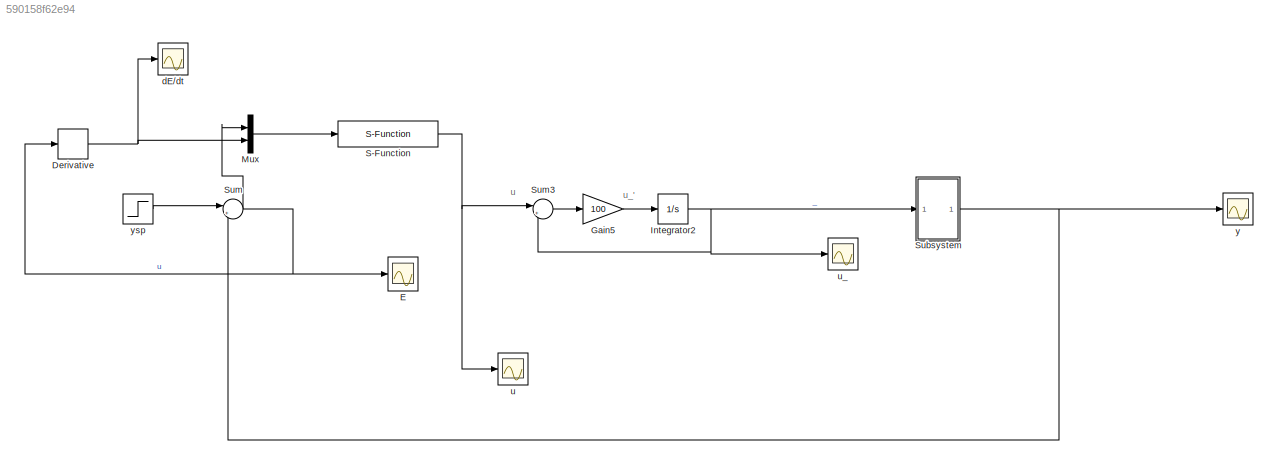
MODEL slx_590158f62e94
KIND model
CONFIG AbsTol = auto
CONFIG EnableMultiTasking = off
CONFIG FixedStep = auto
CONFIG MaxStep = auto
CONFIG MinStep = auto
CONFIG RelTol = 1e-3
CONFIG SampleTimeConstraint = Unconstrained
CONFIG Solver = VariableStepAuto
CONFIG SolverName = VariableStepAuto
CONFIG StartTime = 0.0
CONFIG StopTime = 20
BLOCK [Derivative] Derivative
BLOCK [Scope] E
  Floating = off
  NumInputPorts = 1
  Ports = [1]
  ScopeSpecificationString = Simulink.scopes.TimeScopeBlockCfg('CurrentConfiguration', extmgr.ConfigurationSet(extmgr.Configuration('Core','General UI',true),extmgr.Configuration('Core','Source UI',true),extmgr.Configuration('Sources','WiredSimulink',true,'DataLoggingVariableName','e','DataLogging',true,'DataLoggingSaveFormat','Array'),extmgr.Configuration('Visuals','Time Domain',true,'SerializedDisplays',{struct('MinYLimReal...<+1435ch>
BLOCK [Gain] Gain5
  Gain = 100
  OutDataTypeStr = Inherit: Inherit via internal rule
  ParamDataTypeStr = Inherit: Inherit via internal rule
  SaturateOnIntegerOverflow = off
BLOCK [Integrator] Integrator2
  Ports = [1, 1]
BLOCK [Mux] Mux
  DisplayOption = bar
  Inputs = 2
  Ports = [2, 1]
BLOCK [S-Function] S-Function
  EnableBusSupport = off
  FunctionName = fuzzy_control_pd
  Ports = [1, 1]
  SFcnIsStateOwnerBlock = off
  SFunctionDeploymentMode = off
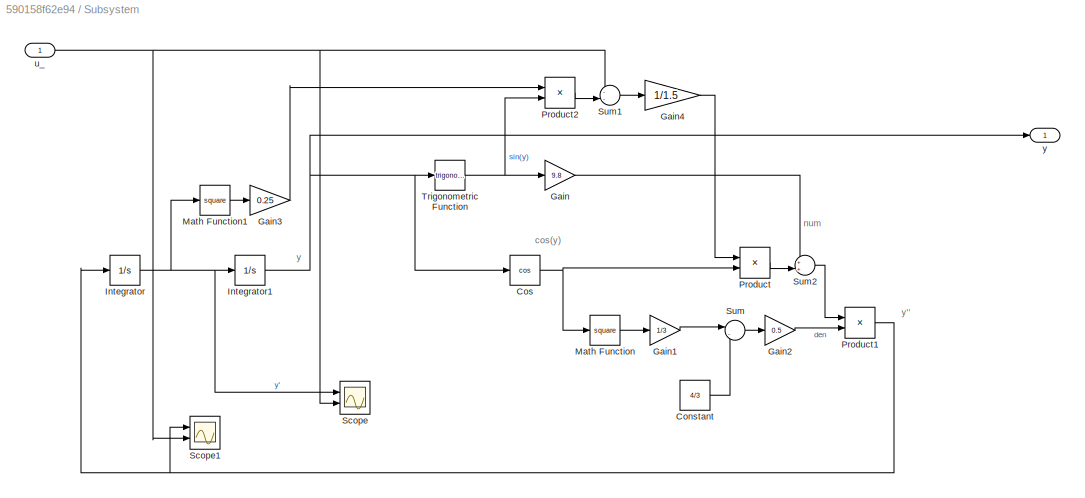
BLOCK [SubSystem] Subsystem
  Ports = [1, 1]
  RequestExecContextInheritance = off
BLOCK [Constant] Subsystem/Constant
  Value = 4/3
BLOCK [Trigonometry] Subsystem/Cos
  Operator = cos
  Ports = [1, 1]
BLOCK [Gain] Subsystem/Gain
  Gain = 9.8
  OutDataTypeStr = Inherit: Inherit via internal rule
  ParamDataTypeStr = Inherit: Inherit via internal rule
  SaturateOnIntegerOverflow = off
BLOCK [Gain] Subsystem/Gain1
  Gain = 1/3
  OutDataTypeStr = Inherit: Inherit via internal rule
  ParamDataTypeStr = Inherit: Inherit via internal rule
  SaturateOnIntegerOverflow = off
BLOCK [Gain] Subsystem/Gain2
  Gain = 0.5
  OutDataTypeStr = Inherit: Inherit via internal rule
  ParamDataTypeStr = Inherit: Inherit via internal rule
  SaturateOnIntegerOverflow = off
BLOCK [Gain] Subsystem/Gain3
  Gain = 0.25
  OutDataTypeStr = Inherit: Inherit via internal rule
  ParamDataTypeStr = Inherit: Inherit via internal rule
  SaturateOnIntegerOverflow = off
BLOCK [Gain] Subsystem/Gain4
  Gain = 1/1.5
  OutDataTypeStr = Inherit: Inherit via internal rule
  ParamDataTypeStr = Inherit: Inherit via internal rule
  SaturateOnIntegerOverflow = off
BLOCK [Integrator] Subsystem/Integrator
  Ports = [1, 1]
BLOCK [Integrator] Subsystem/Integrator1
  InitialCondition = 0.1
  Ports = [1, 1]
BLOCK [Math] Subsystem/Math Function
  Operator = square
  Ports = [1, 1]
  SignedPower = off
BLOCK [Math] Subsystem/Math Function1
  Operator = square
  Ports = [1, 1]
  SignedPower = off
BLOCK [Product] Subsystem/Product
  InputSameDT = off
  OutDataTypeStr = Inherit: Inherit via internal rule
  Ports = [2, 1]
  RndMeth = Floor
  SaturateOnIntegerOverflow = off
BLOCK [Product] Subsystem/Product1
  InputSameDT = off
  Inputs = */
  OutDataTypeStr = Inherit: Inherit via internal rule
  Ports = [2, 1]
  RndMeth = Floor
  SaturateOnIntegerOverflow = off
BLOCK [Product] Subsystem/Product2
  InputSameDT = off
  OutDataTypeStr = Inherit: Inherit via internal rule
  Ports = [2, 1]
  RndMeth = Floor
  SaturateOnIntegerOverflow = off
BLOCK [Scope] Subsystem/Scope
  Floating = off
  NumInputPorts = 2
  Ports = [2]
  ScopeSpecificationString = Simulink.scopes.TimeScopeBlockCfg('CurrentConfiguration', extmgr.ConfigurationSet(extmgr.Configuration('Core','General UI',true),extmgr.Configuration('Core','Source UI',true),extmgr.Configuration('Sources','WiredSimulink',true,'DataLoggingVariableName','ScopeData4'),extmgr.Configuration('Visuals','Time Domain',true,'SerializedDisplays',{struct('MinYLimReal','-1.28249','MaxYLimReal','4.87148','YLab...<+1396ch>
BLOCK [Scope] Subsystem/Scope1
  Floating = off
  NumInputPorts = 2
  Ports = [2]
  ScopeSpecificationString = Simulink.scopes.TimeScopeBlockCfg('CurrentConfiguration', extmgr.ConfigurationSet(extmgr.Configuration('Core','General UI',true),extmgr.Configuration('Core','Source UI',true),extmgr.Configuration('Sources','WiredSimulink',true,'DataLoggingVariableName','ScopeData5'),extmgr.Configuration('Visuals','Time Domain',true,'SerializedDisplays',{struct('MinYLimReal','-4.66964','MaxYLimReal','5.24783','YLab...<+1401ch>
BLOCK [Sum] Subsystem/Sum
  IconShape = round
  InputSameDT = off
  Inputs = |-+
  OutDataTypeStr = Inherit: Inherit via internal rule
  Ports = [2, 1]
  SaturateOnIntegerOverflow = off
BLOCK [Sum] Subsystem/Sum1
  IconShape = round
  InputSameDT = off
  Inputs = --|
  OutDataTypeStr = Inherit: Inherit via internal rule
  Ports = [2, 1]
  SaturateOnIntegerOverflow = off
BLOCK [Sum] Subsystem/Sum2
  IconShape = round
  InputSameDT = off
  Inputs = ++|
  OutDataTypeStr = Inherit: Inherit via internal rule
  Ports = [2, 1]
  SaturateOnIntegerOverflow = off
BLOCK [Trigonometry] Subsystem/Trigonometric Function
  Ports = [1, 1]
BLOCK [Inport] Subsystem/u_
  IconDisplay = Port number
BLOCK [Outport] Subsystem/y
  IconDisplay = Port number
BLOCK [Sum] Sum
  IconShape = round
  InputSameDT = off
  Inputs = |+-
  OutDataTypeStr = Inherit: Inherit via internal rule
  Ports = [2, 1]
  SaturateOnIntegerOverflow = off
BLOCK [Sum] Sum3
  IconShape = round
  InputSameDT = off
  Inputs = |+-
  OutDataTypeStr = Inherit: Inherit via internal rule
  Ports = [2, 1]
  SaturateOnIntegerOverflow = off
BLOCK [Scope] dE//dt
  Floating = off
  NumInputPorts = 1
  Ports = [1]
  ScopeSpecificationString = Simulink.scopes.TimeScopeBlockCfg('CurrentConfiguration', extmgr.ConfigurationSet(extmgr.Configuration('Core','General UI',true),extmgr.Configuration('Core','Source UI',true),extmgr.Configuration('Sources','WiredSimulink',true,'DataLoggingVariableName','de','DataLogging',true,'DataLoggingSaveFormat','Array'),extmgr.Configuration('Visuals','Time Domain',true,'SerializedDisplays',{struct('MinYLimRea...<+1412ch>
BLOCK [Scope] u
  Floating = off
  NumInputPorts = 1
  Ports = [1]
  ScopeSpecificationString = Simulink.scopes.TimeScopeBlockCfg('CurrentConfiguration', extmgr.ConfigurationSet(extmgr.Configuration('Core','General UI',true),extmgr.Configuration('Core','Source UI',true),extmgr.Configuration('Sources','WiredSimulink',true,'DataLoggingVariableName','u_no_p','DataLogging',true,'DataLoggingSaveFormat','Array'),extmgr.Configuration('Visuals','Time Domain',true,'SerializedDisplays',{struct('MinYLi...<+1446ch>
BLOCK [Scope] u_
  Floating = off
  NumInputPorts = 1
  Ports = [1]
  ScopeSpecificationString = Simulink.scopes.TimeScopeBlockCfg('CurrentConfiguration', extmgr.ConfigurationSet(extmgr.Configuration('Core','General UI',true),extmgr.Configuration('Core','Source UI',true),extmgr.Configuration('Sources','WiredSimulink',true,'DataLoggingVariableName','ScopeData1','DataLoggingSaveFormat','Array'),extmgr.Configuration('Visuals','Time Domain',true,'SerializedDisplays',{struct('MinYLimReal','-1.2824...<+1392ch>
BLOCK [Scope] y
  Floating = off
  NumInputPorts = 1
  Ports = [1]
  ScopeSpecificationString = Simulink.scopes.TimeScopeBlockCfg('CurrentConfiguration', extmgr.ConfigurationSet(extmgr.Configuration('Core','General UI',true),extmgr.Configuration('Core','Source UI',true),extmgr.Configuration('Sources','WiredSimulink',true,'DataLoggingVariableName','y_no_p','DataLogging',true,'DataLoggingSaveFormat','Array'),extmgr.Configuration('Visuals','Time Domain',true,'SerializedDisplays',{struct('MinYLi...<+1415ch>
BLOCK [Step] ysp
  After = 0
  SampleTime = 0
  Time = 0
ANNOTATION (root): u
ANNOTATION (root): u_'
ANNOTATION Subsystem: cos(y)
ANNOTATION Subsystem: num
ANNOTATION Subsystem: y
ANNOTATION Subsystem: y''
NET Derivative:1 -> Mux:2, dE//dt:1
LINE Gain5:1 -> Integrator2:1
NET Integrator2:1 -> Subsystem:1, Sum3:2, u_:1
LINE Mux:1 -> S-Function:1
NET S-Function:1 -> Sum3:1, u:1
LINE Subsystem/Constant:1 -> Subsystem/Sum:2
NET Subsystem/Cos:1 -> Subsystem/Math Function:1, Subsystem/Product:2
LINE Subsystem/Gain1:1 -> Subsystem/Sum:1
LINE Subsystem/Gain2:1 -> Subsystem/Product1:2
LINE Subsystem/Gain3:1 -> Subsystem/Product2:1
LINE Subsystem/Gain4:1 -> Subsystem/Product:1
LINE Subsystem/Gain:1 -> Subsystem/Sum2:1
NET Subsystem/Integrator1:1 -> Subsystem/Cos:1, Subsystem/Trigonometric Function:1, Subsystem/y:1
NET Subsystem/Integrator:1 -> Subsystem/Integrator1:1, Subsystem/Math Function1:1, Subsystem/Scope:1
LINE Subsystem/Math Function1:1 -> Subsystem/Gain3:1
LINE Subsystem/Math Function:1 -> Subsystem/Gain1:1
NET Subsystem/Product1:1 -> Subsystem/Integrator:1, Subsystem/Scope1:1
LINE Subsystem/Product2:1 -> Subsystem/Sum1:2
LINE Subsystem/Product:1 -> Subsystem/Sum2:2
LINE Subsystem/Sum1:1 -> Subsystem/Gain4:1
LINE Subsystem/Sum2:1 -> Subsystem/Product1:1
LINE Subsystem/Sum:1 -> Subsystem/Gain2:1
NET Subsystem/Trigonometric Function:1 -> Subsystem/Gain:1, Subsystem/Product2:2
NET Subsystem/u_:1 -> Subsystem/Scope1:2, Subsystem/Scope:2, Subsystem/Sum1:1
NET Subsystem:1 -> Sum:2, y:1
LINE Sum3:1 -> Gain5:1
NET Sum:1 -> Derivative:1, E:1, Mux:1
LINE ysp:1 -> Sum:1
note: NET lines group one-source signal fan-out (src -> all destinations, sorted); 1:1 wires keep LINE
